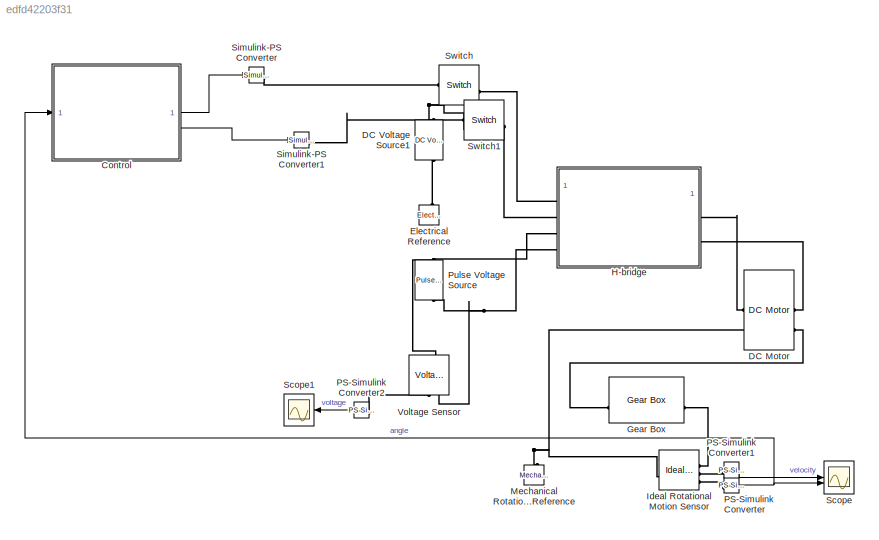
MODEL slx_edfd42203f31
KIND model
CONFIG AbsTol = auto
CONFIG EnableMultiTasking = off
CONFIG FixedStep = auto
CONFIG MaxStep = auto
CONFIG MinStep = auto
CONFIG RelTol = 1e-3
CONFIG SampleTimeConstraint = Unconstrained
CONFIG SolverName = VariableStepAuto
CONFIG StartTime = 0.0
CONFIG StopTime = 100
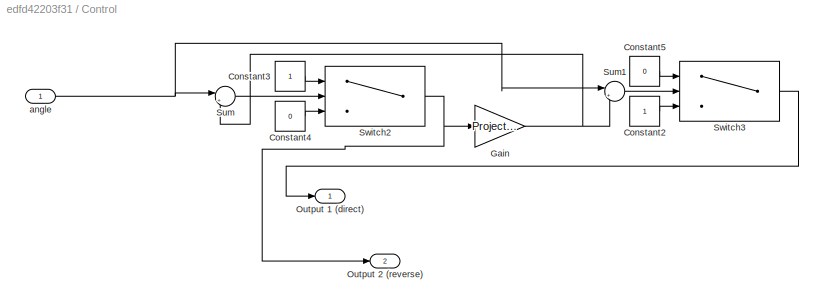
BLOCK [SubSystem] Control
BLOCK [Constant] Control/Constant2
BLOCK [Constant] Control/Constant3
BLOCK [Constant] Control/Constant4
  Value = 0
BLOCK [Constant] Control/Constant5
  Value = 0
BLOCK [Gain] Control/Gain
  Gain = Project.max_deg-Project.min_deg
  OutMin = 0
BLOCK [Outport] Control/Output 1 (direct)
BLOCK [Outport] Control/Output 2 (reverse)
  Port = 2
BLOCK [Sum] Control/Sum
  Inputs = |++
BLOCK [Sum] Control/Sum1
  Inputs = |++
BLOCK [Switch] Control/Switch2
  InputSameDT = off
  OutMax = 360
  OutMin = 0
  SaturateOnIntegerOverflow = off
  Threshold = Project.max_deg
BLOCK [Switch] Control/Switch3
  InputSameDT = off
  OutMax = 360
  OutMin = 0
  SaturateOnIntegerOverflow = off
  Threshold = Project.max_deg
BLOCK [Inport] Control/angle
BLOCK [Reference] DC Motor  REF=ee_lib/Electromechanical/Brushed Motors/DC Motor
  SourceBlock = ee_lib/Electromechanical/Brushed Motors/DC Motor
  SourceType = DC Motor
BLOCK [Reference] DC Voltage Source1  REF=ee_lib/Additional
Components/SPICE Sources/DC Voltage Source
  NameLocation = right
  SourceBlock = ee_lib/Additional\nComponents/SPICE Sources/DC Voltage Source
  SourceType = DC Voltage Source
BLOCK [Reference] Electrical Reference  REF=fl_lib/Electrical/Electrical Elements/Electrical Reference
  LibrarySourceBlock = ee_lib/Connectors &\nReferences/Electrical Reference
  NameLocation = right
  SourceBlock = fl_lib/Electrical/Electrical Elements/Electrical Reference
  SourceType = Electrical Reference
BLOCK [Reference] Gear Box  REF=fl_lib/Mechanical/Mechanisms/Gear Box
  SourceBlock = fl_lib/Mechanical/Mechanisms/Gear Box
  SourceType = Gear Box
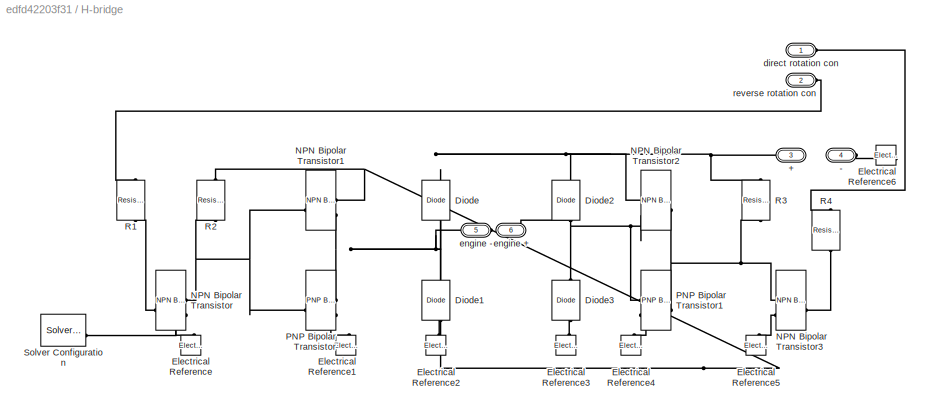
BLOCK [SubSystem] H-bridge
BLOCK [PMIOPort] H-bridge/+
  NameLocation = top
  Port = 3
  Side = Left
BLOCK [PMIOPort] H-bridge/-
  Port = 4
  Side = Left
BLOCK [Reference] H-bridge/Diode  REF=ee_lib/Semiconductors &
Converters/Diode
  NameLocation = right
  SourceBlock = ee_lib/Semiconductors &\nConverters/Diode
  SourceType = Diode
BLOCK [Reference] H-bridge/Diode1  REF=ee_lib/Semiconductors &
Converters/Diode
  NameLocation = right
  SourceBlock = ee_lib/Semiconductors &\nConverters/Diode
  SourceType = Diode
BLOCK [Reference] H-bridge/Diode2  REF=ee_lib/Semiconductors &
Converters/Diode
  NameLocation = right
  SourceBlock = ee_lib/Semiconductors &\nConverters/Diode
  SourceType = Diode
BLOCK [Reference] H-bridge/Diode3  REF=ee_lib/Semiconductors &
Converters/Diode
  NameLocation = right
  SourceBlock = ee_lib/Semiconductors &\nConverters/Diode
  SourceType = Diode
BLOCK [Reference] H-bridge/Electrical Reference  REF=fl_lib/Electrical/Electrical Elements/Electrical Reference
  LibrarySourceBlock = ee_lib/Connectors &\nReferences/Electrical Reference
  NameLocation = right
  SourceBlock = fl_lib/Electrical/Electrical Elements/Electrical Reference
  SourceType = Electrical Reference
BLOCK [Reference] H-bridge/Electrical Reference1  REF=fl_lib/Electrical/Electrical Elements/Electrical Reference
  LibrarySourceBlock = ee_lib/Connectors &\nReferences/Electrical Reference
  NameLocation = right
  SourceBlock = fl_lib/Electrical/Electrical Elements/Electrical Reference
  SourceType = Electrical Reference
BLOCK [Reference] H-bridge/Electrical Reference2  REF=fl_lib/Electrical/Electrical Elements/Electrical Reference
  LibrarySourceBlock = ee_lib/Connectors &\nReferences/Electrical Reference
  NameLocation = right
  SourceBlock = fl_lib/Electrical/Electrical Elements/Electrical Reference
  SourceType = Electrical Reference
BLOCK [Reference] H-bridge/Electrical Reference3  REF=fl_lib/Electrical/Electrical Elements/Electrical Reference
  LibrarySourceBlock = ee_lib/Connectors &\nReferences/Electrical Reference
  NameLocation = right
  SourceBlock = fl_lib/Electrical/Electrical Elements/Electrical Reference
  SourceType = Electrical Reference
BLOCK [Reference] H-bridge/Electrical Reference4  REF=fl_lib/Electrical/Electrical Elements/Electrical Reference
  LibrarySourceBlock = ee_lib/Connectors &\nReferences/Electrical Reference
  NameLocation = right
  SourceBlock = fl_lib/Electrical/Electrical Elements/Electrical Reference
  SourceType = Electrical Reference
BLOCK [Reference] H-bridge/Electrical Reference5  REF=fl_lib/Electrical/Electrical Elements/Electrical Reference
  LibrarySourceBlock = ee_lib/Connectors &\nReferences/Electrical Reference
  NameLocation = right
  SourceBlock = fl_lib/Electrical/Electrical Elements/Electrical Reference
  SourceType = Electrical Reference
BLOCK [Reference] H-bridge/Electrical Reference6  REF=fl_lib/Electrical/Electrical Elements/Electrical Reference
  LibrarySourceBlock = ee_lib/Connectors &\nReferences/Electrical Reference
  NameLocation = top
  SourceBlock = fl_lib/Electrical/Electrical Elements/Electrical Reference
  SourceType = Electrical Reference
BLOCK [Reference] H-bridge/NPN Bipolar Transistor  REF=ee_lib/Semiconductors &
Converters/NPN Bipolar
Transistor
  SourceBlock = ee_lib/Semiconductors &\nConverters/NPN Bipolar\nTransistor
  SourceType = NPN Bipolar\nTransistor
BLOCK [Reference] H-bridge/NPN Bipolar Transistor1  REF=ee_lib/Semiconductors &
Converters/NPN Bipolar
Transistor
  SourceBlock = ee_lib/Semiconductors &\nConverters/NPN Bipolar\nTransistor
  SourceType = NPN Bipolar\nTransistor
BLOCK [Reference] H-bridge/NPN Bipolar Transistor2  REF=ee_lib/Semiconductors &
Converters/NPN Bipolar
Transistor
  SourceBlock = ee_lib/Semiconductors &\nConverters/NPN Bipolar\nTransistor
  SourceType = NPN Bipolar\nTransistor
BLOCK [Reference] H-bridge/NPN Bipolar Transistor3  REF=ee_lib/Semiconductors &
Converters/NPN Bipolar
Transistor
  SourceBlock = ee_lib/Semiconductors &\nConverters/NPN Bipolar\nTransistor
  SourceType = NPN Bipolar\nTransistor
BLOCK [Reference] H-bridge/PNP Bipolar Transistor  REF=ee_lib/Semiconductors &
Converters/PNP Bipolar
Transistor
  SourceBlock = ee_lib/Semiconductors &\nConverters/PNP Bipolar\nTransistor
  SourceType = PNP Bipolar\nTransistor
BLOCK [Reference] H-bridge/PNP Bipolar Transistor1  REF=ee_lib/Semiconductors &
Converters/PNP Bipolar
Transistor
  SourceBlock = ee_lib/Semiconductors &\nConverters/PNP Bipolar\nTransistor
  SourceType = PNP Bipolar\nTransistor
BLOCK [Reference] H-bridge/R1  REF=fl_lib/Electrical/Electrical Elements/Resistor
  NameLocation = left
  SourceBlock = fl_lib/Electrical/Electrical Elements/Resistor
  SourceType = Resistor
BLOCK [Reference] H-bridge/R2  REF=fl_lib/Electrical/Electrical Elements/Resistor
  NameLocation = left
  SourceBlock = fl_lib/Electrical/Electrical Elements/Resistor
  SourceType = Resistor
BLOCK [Reference] H-bridge/R3  REF=fl_lib/Electrical/Electrical Elements/Resistor
  NameLocation = left
  SourceBlock = fl_lib/Electrical/Electrical Elements/Resistor
  SourceType = Resistor
BLOCK [Reference] H-bridge/R4  REF=fl_lib/Electrical/Electrical Elements/Resistor
  NameLocation = left
  SourceBlock = fl_lib/Electrical/Electrical Elements/Resistor
  SourceType = Resistor
BLOCK [Reference] H-bridge/Solver Configuration  REF=nesl_utility/Solver
Configuration
  SourceBlock = nesl_utility/Solver\nConfiguration
  SourceType = Solver\nConfiguration
BLOCK [PMIOPort] H-bridge/direct rotation con 
  Side = Left
BLOCK [PMIOPort] H-bridge/engine +
  Port = 6
  Side = Right
BLOCK [PMIOPort] H-bridge/engine -
  NameLocation = top
  Port = 5
  Side = Right
BLOCK [PMIOPort] H-bridge/reverse rotation con
  Port = 2
  Side = Left
BLOCK [Reference] Ideal Rotational Motion Sensor  REF=fl_lib/Mechanical/Mechanical Sensors/Ideal Rotational
Motion Sensor
  SourceBlock = fl_lib/Mechanical/Mechanical Sensors/Ideal Rotational\nMotion Sensor
  SourceType = Ideal Rotational\nMotion Sensor
BLOCK [Reference] Mechanical Rotational Reference  REF=fl_lib/Mechanical/Rotational Elements/Mechanical
Rotational Reference
  NameLocation = right
  SourceBlock = fl_lib/Mechanical/Rotational Elements/Mechanical\nRotational Reference
  SourceType = Mechanical\nRotational Reference
BLOCK [Reference] PS-Simulink Converter  REF=nesl_utility/PS-Simulink
Converter
  SourceBlock = nesl_utility/PS-Simulink\nConverter
  SourceType = PS-Simulink\nConverter
BLOCK [Reference] PS-Simulink Converter1  REF=nesl_utility/PS-Simulink
Converter
  SourceBlock = nesl_utility/PS-Simulink\nConverter
  SourceType = PS-Simulink\nConverter
BLOCK [Reference] PS-Simulink Converter2  REF=nesl_utility/PS-Simulink
Converter
  NameLocation = top
  SourceBlock = nesl_utility/PS-Simulink\nConverter
  SourceType = PS-Simulink\nConverter
BLOCK [Reference] Pulse Voltage Source  REF=ee_lib/Additional
Components/SPICE Sources/Pulse Voltage Source
  LibrarySourceBlock = ee_lib/Sources/Pulse Voltage Source
  NameLocation = right
  SourceBlock = ee_lib/Additional\nComponents/SPICE Sources/Pulse Voltage Source
  SourceType = Pulse Voltage Source
BLOCK [Scope] Scope
  Floating = off
  NumInputPorts = 2
  ScopeSpecificationString = Simulink.scopes.TimeScopeBlockCfg('CurrentConfiguration', extmgr.ConfigurationSet(extmgr.Configuration('Core','General UI',true,'FigureColor',[1 1 1]),extmgr.Configuration('Core','Source UI',true),extmgr.Configuration('Sources','WiredSimulink',true),extmgr.Configuration('Visuals','Time Domain',true,'SerializedDisplays',{struct('MinYLimReal','-450.36812','MaxYLimReal','450.37071','YLabelReal','','M...<+1499ch>
BLOCK [Scope] Scope1
  Floating = off
  NameLocation = top
  NumInputPorts = 1
  ScopeSpecificationString = Simulink.scopes.TimeScopeBlockCfg('CurrentConfiguration', extmgr.ConfigurationSet(extmgr.Configuration('Core','General UI',true,'FigureColor',[1 1 1]),extmgr.Configuration('Core','Source UI',true),extmgr.Configuration('Sources','WiredSimulink',true,'DataLoggingVariableName','ScopeData1'),extmgr.Configuration('Visuals','Time Domain',true,'SerializedDisplays',{struct('MinYLimReal','-3.00000','MaxYLi...<+1505ch>
BLOCK [Reference] Simulink-PS Converter  REF=nesl_utility/Simulink-PS
Converter
  SourceBlock = nesl_utility/Simulink-PS\nConverter
  SourceType = Simulink-PS\nConverter
BLOCK [Reference] Simulink-PS Converter1  REF=nesl_utility/Simulink-PS
Converter
  SourceBlock = nesl_utility/Simulink-PS\nConverter
  SourceType = Simulink-PS\nConverter
BLOCK [Reference] Switch  REF=fl_lib/Electrical/Electrical Elements/Switch
  SourceBlock = fl_lib/Electrical/Electrical Elements/Switch
  SourceType = Switch
BLOCK [Reference] Switch1  REF=fl_lib/Electrical/Electrical Elements/Switch
  SourceBlock = fl_lib/Electrical/Electrical Elements/Switch
  SourceType = Switch
BLOCK [Reference] Voltage Sensor  REF=fl_lib/Electrical/Electrical Sensors/Voltage Sensor
  NameLocation = right
  SourceBlock = fl_lib/Electrical/Electrical Sensors/Voltage Sensor
  SourceType = Voltage Sensor
LINE Control/Constant2:1 -> Control/Switch3:3
LINE Control/Constant3:1 -> Control/Switch2:1
LINE Control/Constant4:1 -> Control/Switch2:3
LINE Control/Constant5:1 -> Control/Switch3:1
NET Control/Gain:1 -> Control/Sum1:2, Control/Sum:2
LINE Control/Sum1:1 -> Control/Switch3:2
LINE Control/Sum:1 -> Control/Switch2:2
NET Control/Switch2:1 -> Control/Gain:1, Control/Output 2 (reverse):1
LINE Control/Switch3:1 -> Control/Output 1 (direct):1
NET Control/angle:1 -> Control/Sum1:1, Control/Sum:1
LINE Control:1 -> Simulink-PS Converter:1
LINE Control:2 -> Simulink-PS Converter1:1
LINE PS-Simulink Converter1:1 -> Scope:1
LINE PS-Simulink Converter2:1 -> Scope1:1
NET PS-Simulink Converter:1 -> Control:1, Scope:2
PLINE DC Motor:LConn1 -- H-bridge:RConn2
PLINE DC Motor:LConn2 -- Gear Box:LConn1
PLINE DC Motor:RConn1 -- H-bridge:RConn1
PNET net1: DC Motor:RConn2 -- Ideal Rotational Motion Sensor:LConn1 -- Mechanical Rotational Reference:LConn1
PNET net2: DC Voltage Source1:LConn1 -- Switch1:RConn2 -- Switch:RConn2
PLINE DC Voltage Source1:RConn1 -- Electrical Reference:LConn1
PLINE Gear Box:RConn1 -- Ideal Rotational Motion Sensor:RConn1
PNET net3: H-bridge/+:RConn1 -- H-bridge/Diode2:RConn1 -- H-bridge/Diode:RConn1 -- H-bridge/NPN Bipolar Transistor1:RConn1 -- H-bridge/NPN Bipolar Transistor2:RConn1 -- H-bridge/R2:LConn1 -- H-bridge/R3:LConn1
PLINE H-bridge/-:RConn1 -- H-bridge/Electrical Reference6:LConn1
PLINE H-bridge/Diode1:LConn1 -- H-bridge/Electrical Reference2:LConn1
PNET net4: H-bridge/Diode1:RConn1 -- H-bridge/Diode:LConn1 -- H-bridge/NPN Bipolar Transistor1:RConn2 -- H-bridge/PNP Bipolar Transistor:RConn1 -- H-bridge/engine -:RConn1
PNET net5: H-bridge/Diode2:LConn1 -- H-bridge/Diode3:RConn1 -- H-bridge/NPN Bipolar Transistor2:RConn2 -- H-bridge/PNP Bipolar Transistor1:RConn1 -- H-bridge/engine +:RConn1
PLINE H-bridge/Diode3:LConn1 -- H-bridge/Electrical Reference3:LConn1
PLINE H-bridge/Electrical Reference1:LConn1 -- H-bridge/PNP Bipolar Transistor:RConn2
PLINE H-bridge/Electrical Reference4:LConn1 -- H-bridge/PNP Bipolar Transistor1:RConn2
PLINE H-bridge/Electrical Reference5:LConn1 -- H-bridge/NPN Bipolar Transistor3:RConn2
PNET net6: H-bridge/Electrical Reference:LConn1 -- H-bridge/NPN Bipolar Transistor:RConn2 -- H-bridge/Solver Configuration:RConn1
PNET net7: H-bridge/NPN Bipolar Transistor1:LConn1 -- H-bridge/NPN Bipolar Transistor:RConn1 -- H-bridge/PNP Bipolar Transistor:LConn1 -- H-bridge/R2:RConn1
PNET net8: H-bridge/NPN Bipolar Transistor2:LConn1 -- H-bridge/NPN Bipolar Transistor3:RConn1 -- H-bridge/PNP Bipolar Transistor1:LConn1 -- H-bridge/R3:RConn1
PLINE H-bridge/NPN Bipolar Transistor3:LConn1 -- H-bridge/R4:RConn1
PLINE H-bridge/NPN Bipolar Transistor:LConn1 -- H-bridge/R1:RConn1
PLINE H-bridge/R1:LConn1 -- H-bridge/reverse rotation con:RConn1
PLINE H-bridge/R4:LConn1 -- H-bridge/direct rotation con :RConn1
PLINE H-bridge:LConn1 -- Switch:LConn1
PLINE H-bridge:LConn2 -- Switch1:LConn1
PNET net9: H-bridge:LConn3 -- Pulse Voltage Source:LConn1 -- Voltage Sensor:LConn1
PNET net10: H-bridge:LConn4 -- Pulse Voltage Source:RConn1 -- Voltage Sensor:RConn2
PLINE Ideal Rotational Motion Sensor:RConn2 -- PS-Simulink Converter1:LConn1
PLINE Ideal Rotational Motion Sensor:RConn3 -- PS-Simulink Converter:LConn1
PLINE PS-Simulink Converter2:LConn1 -- Voltage Sensor:RConn1
PLINE Simulink-PS Converter1:RConn1 -- Switch1:RConn1
PLINE Simulink-PS Converter:RConn1 -- Switch:RConn1
note: NET lines group one-source signal fan-out (src -> all destinations, sorted); 1:1 wires keep LINE; PNET lines group multi-terminal physical nets as a canonical sorted terminal list (undirected conserving connections); 2-terminal nets keep the pairwise PLINE form
